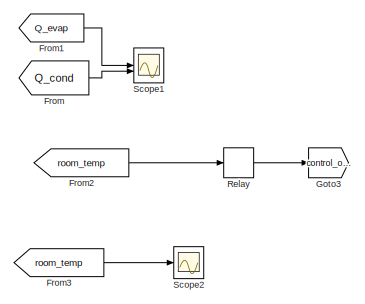
[diagram: root canvas - part 1/5, top right region]
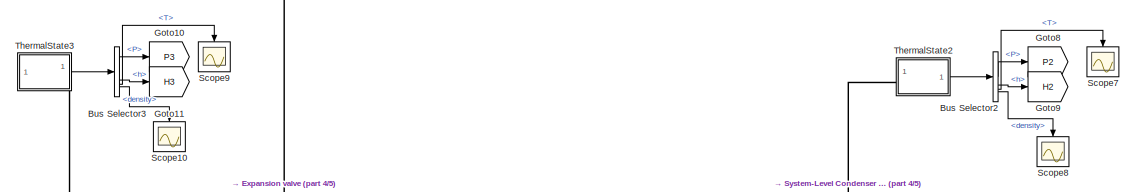
[diagram: root canvas - part 2/5, top left region]
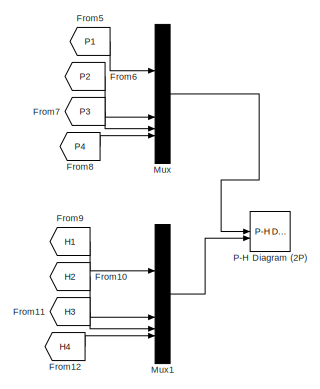
[diagram: root canvas - part 3/5, middle right region]
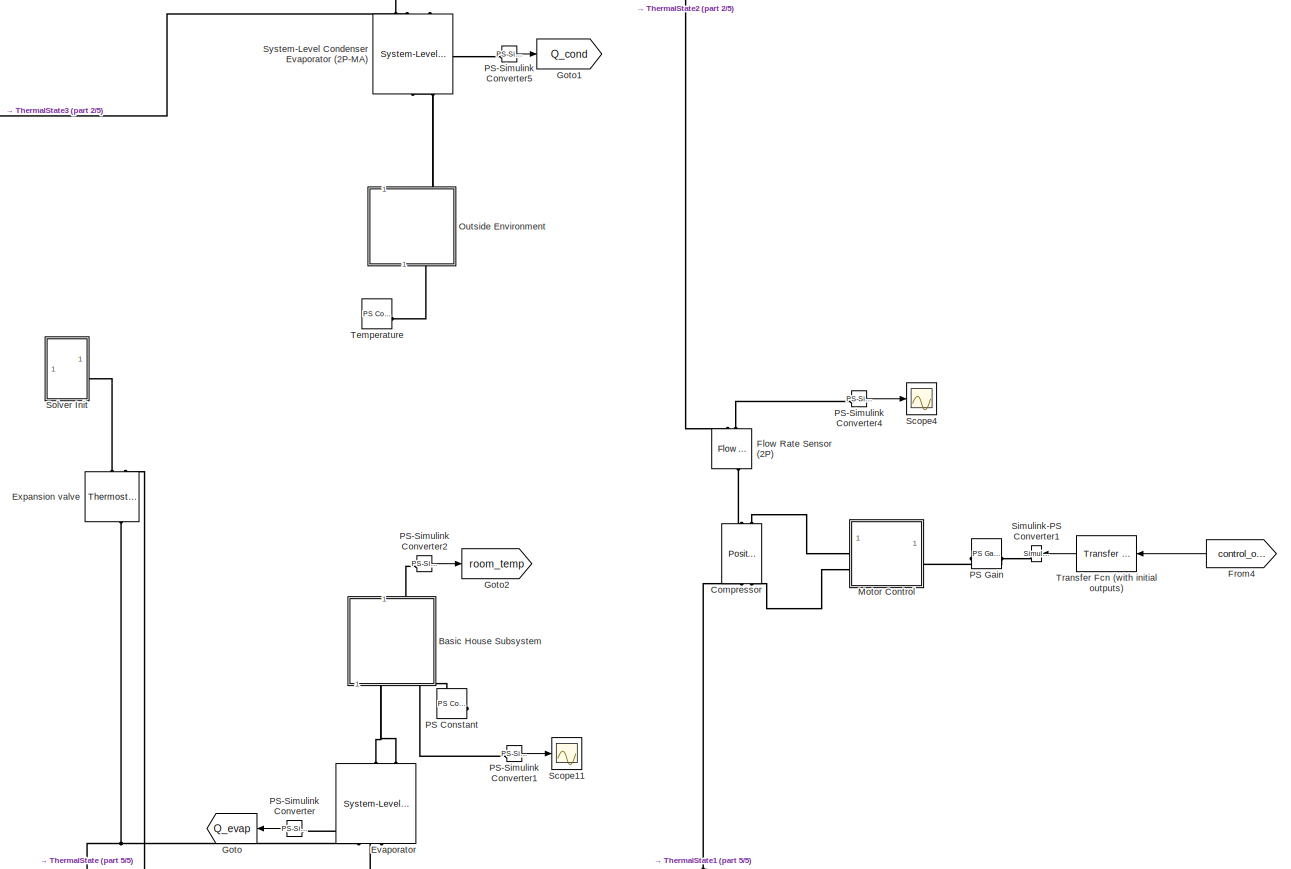
[diagram: root canvas - part 4/5, central region]
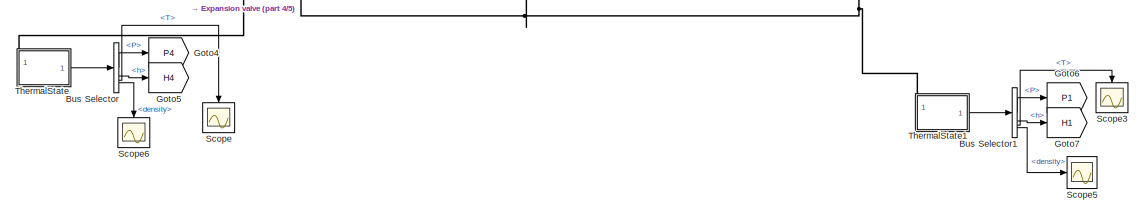
[diagram: root canvas - part 5/5, bottom left region]
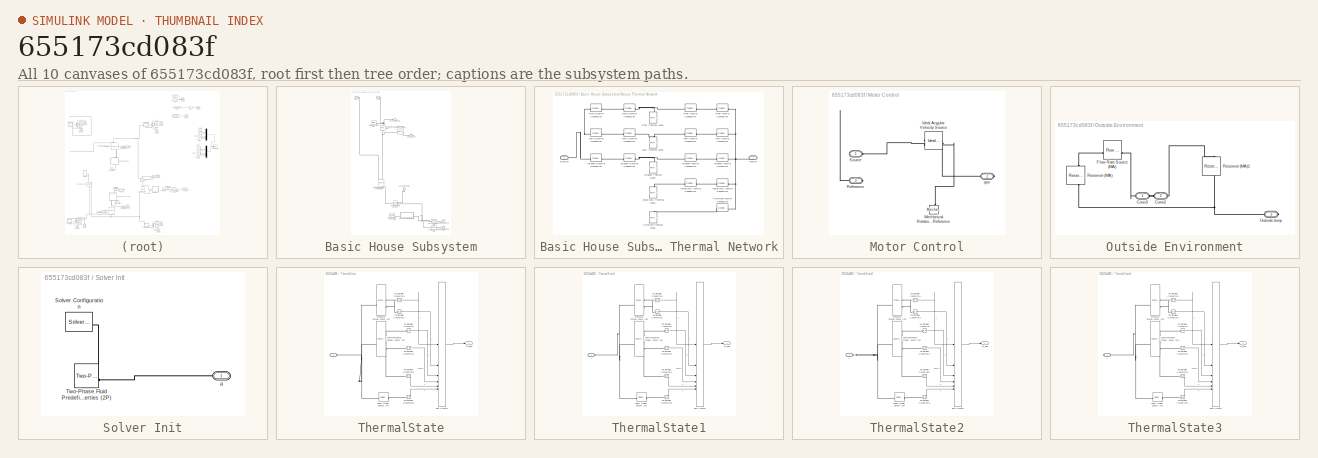
[diagram: thumbnail index - all 10 canvases of the model, root first then tree order]
MODEL slx_655173cd083f
KIND model
CONFIG AbsTol = auto
CONFIG EnableMultiTasking = off
CONFIG FixedStep = auto
CONFIG MaxStep = auto
CONFIG MinStep = auto
CONFIG RelTol = 1e-3
CONFIG SampleTimeConstraint = Unconstrained
CONFIG SolverName = VariableStepAuto
CONFIG StartTime = 0.0
CONFIG StopTime = 1000
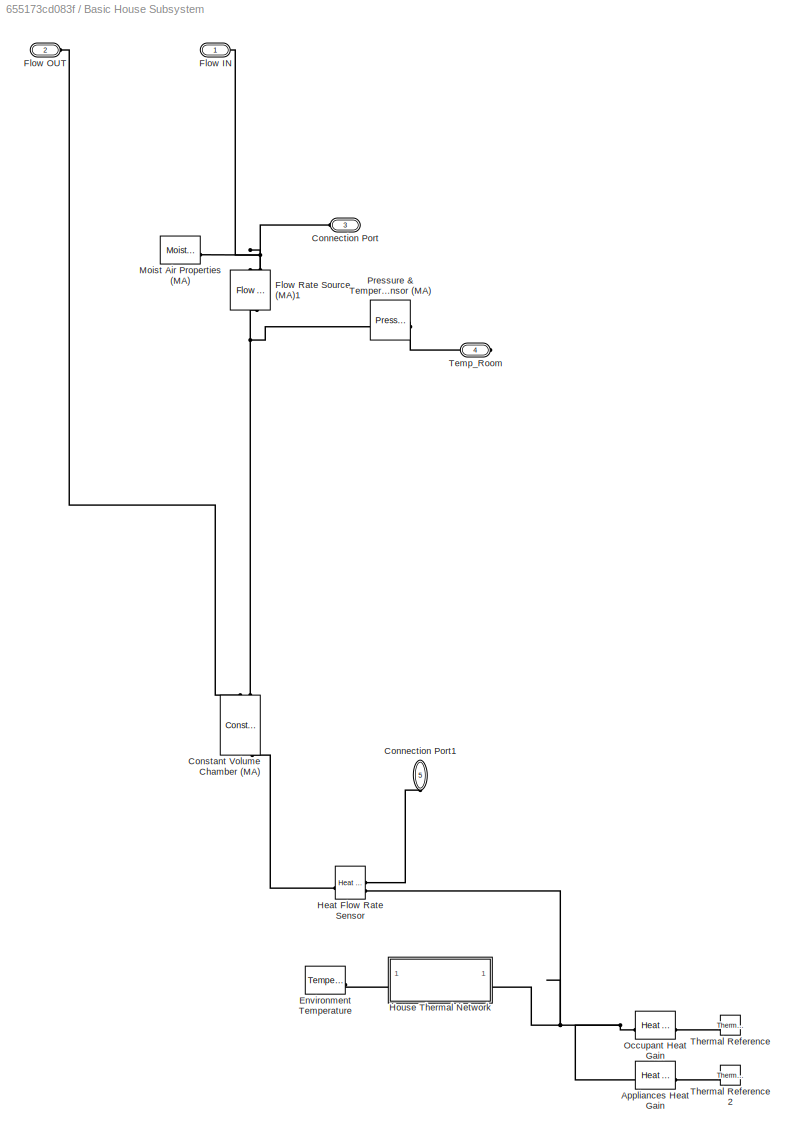
BLOCK [SubSystem] Basic House Subsystem
  NameLocation = right
BLOCK [Reference] Basic House Subsystem/Appliances Heat Gain  REF=fl_lib/Thermal/Thermal Sources/Heat Flow Rate
Source
  SourceBlock = fl_lib/Thermal/Thermal Sources/Heat Flow Rate\nSource
  SourceType = Heat Flow Rate\nSource
BLOCK [PMIOPort] Basic House Subsystem/Connection Port
  NameLocation = top
  Port = 3
  Side = Left
BLOCK [PMIOPort] Basic House Subsystem/Connection Port1
  NameLocation = left
  Port = 5
  Side = Left
BLOCK [Reference] Basic House Subsystem/Constant Volume Chamber (MA)  REF=fl_lib/Moist Air/Elements/Constant Volume
Chamber (MA)
  NameLocation = right
  SourceBlock = fl_lib/Moist Air/Elements/Constant Volume\nChamber (MA)
  SourceType = Constant Volume\nChamber (MA)
BLOCK [Reference] Basic House Subsystem/Environment Temperature  REF=fl_lib/Thermal/Thermal Sources/Temperature Source
  SourceBlock = fl_lib/Thermal/Thermal Sources/Temperature Source
  SourceType = Temperature Source
BLOCK [PMIOPort] Basic House Subsystem/Flow IN
  Side = Left
BLOCK [PMIOPort] Basic House Subsystem/Flow OUT
  Port = 2
  Side = Left
BLOCK [Reference] Basic House Subsystem/Flow Rate Source (MA)1  REF=fl_lib/Moist Air/Sources/Flow Rate Source
(MA)
  NameLocation = left
  SourceBlock = fl_lib/Moist Air/Sources/Flow Rate Source\n(MA)
  SourceType = Flow Rate Source\n(MA)
BLOCK [Reference] Basic House Subsystem/Heat Flow Rate Sensor  REF=fl_lib/Thermal/Thermal Sensors/Heat Flow Rate
Sensor
  SourceBlock = fl_lib/Thermal/Thermal Sensors/Heat Flow Rate\nSensor
  SourceType = Heat Flow Rate\nSensor
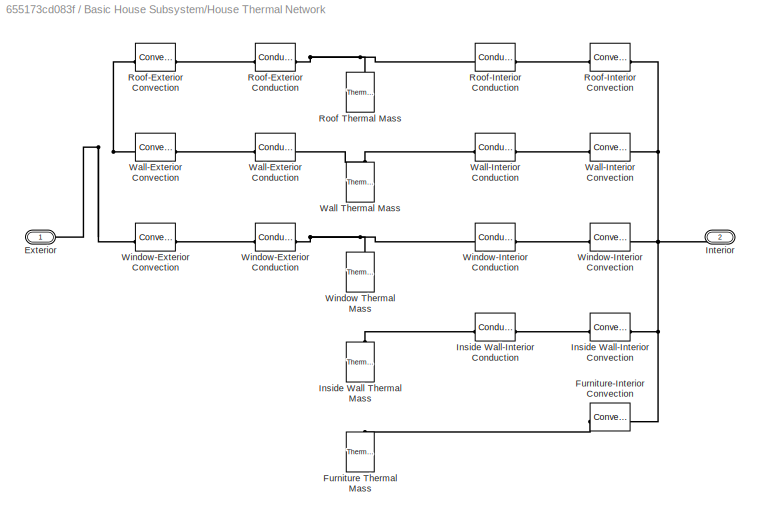
BLOCK [SubSystem] Basic House Subsystem/House Thermal Network
  Tag = PublishSubsystem
BLOCK [PMIOPort] Basic House Subsystem/House Thermal Network/Exterior
  Side = Left
BLOCK [Reference] Basic House Subsystem/House Thermal Network/Furniture Thermal Mass  REF=fl_lib/Thermal/Thermal Elements/Thermal Mass
  NameLocation = right
  SourceBlock = fl_lib/Thermal/Thermal Elements/Thermal Mass
  SourceType = Thermal Mass
BLOCK [Reference] Basic House Subsystem/House Thermal Network/Furniture-Interior Convection  REF=fl_lib/Thermal/Thermal Elements/Convective Heat
Transfer
  SourceBlock = fl_lib/Thermal/Thermal Elements/Convective Heat\nTransfer
  SourceType = Convective Heat\nTransfer
BLOCK [Reference] Basic House Subsystem/House Thermal Network/Inside Wall Thermal Mass  REF=fl_lib/Thermal/Thermal Elements/Thermal Mass
  NameLocation = right
  SourceBlock = fl_lib/Thermal/Thermal Elements/Thermal Mass
  SourceType = Thermal Mass
BLOCK [Reference] Basic House Subsystem/House Thermal Network/Inside Wall-Interior Conduction  REF=fl_lib/Thermal/Thermal Elements/Conductive Heat
Transfer
  SourceBlock = fl_lib/Thermal/Thermal Elements/Conductive Heat\nTransfer
  SourceType = Conductive Heat\nTransfer
BLOCK [Reference] Basic House Subsystem/House Thermal Network/Inside Wall-Interior Convection  REF=fl_lib/Thermal/Thermal Elements/Convective Heat
Transfer
  SourceBlock = fl_lib/Thermal/Thermal Elements/Convective Heat\nTransfer
  SourceType = Convective Heat\nTransfer
BLOCK [PMIOPort] Basic House Subsystem/House Thermal Network/Interior
  Port = 2
  Side = Right
BLOCK [Reference] Basic House Subsystem/House Thermal Network/Roof Thermal Mass  REF=fl_lib/Thermal/Thermal Elements/Thermal Mass
  NameLocation = right
  SourceBlock = fl_lib/Thermal/Thermal Elements/Thermal Mass
  SourceType = Thermal Mass
BLOCK [Reference] Basic House Subsystem/House Thermal Network/Roof-Exterior Conduction  REF=fl_lib/Thermal/Thermal Elements/Conductive Heat
Transfer
  SourceBlock = fl_lib/Thermal/Thermal Elements/Conductive Heat\nTransfer
  SourceType = Conductive Heat\nTransfer
BLOCK [Reference] Basic House Subsystem/House Thermal Network/Roof-Exterior Convection  REF=fl_lib/Thermal/Thermal Elements/Convective Heat
Transfer
  SourceBlock = fl_lib/Thermal/Thermal Elements/Convective Heat\nTransfer
  SourceType = Convective Heat\nTransfer
BLOCK [Reference] Basic House Subsystem/House Thermal Network/Roof-Interior Conduction  REF=fl_lib/Thermal/Thermal Elements/Conductive Heat
Transfer
  SourceBlock = fl_lib/Thermal/Thermal Elements/Conductive Heat\nTransfer
  SourceType = Conductive Heat\nTransfer
BLOCK [Reference] Basic House Subsystem/House Thermal Network/Roof-Interior Convection  REF=fl_lib/Thermal/Thermal Elements/Convective Heat
Transfer
  SourceBlock = fl_lib/Thermal/Thermal Elements/Convective Heat\nTransfer
  SourceType = Convective Heat\nTransfer
BLOCK [Reference] Basic House Subsystem/House Thermal Network/Wall Thermal Mass  REF=fl_lib/Thermal/Thermal Elements/Thermal Mass
  NameLocation = right
  SourceBlock = fl_lib/Thermal/Thermal Elements/Thermal Mass
  SourceType = Thermal Mass
BLOCK [Reference] Basic House Subsystem/House Thermal Network/Wall-Exterior Conduction  REF=fl_lib/Thermal/Thermal Elements/Conductive Heat
Transfer
  SourceBlock = fl_lib/Thermal/Thermal Elements/Conductive Heat\nTransfer
  SourceType = Conductive Heat\nTransfer
BLOCK [Reference] Basic House Subsystem/House Thermal Network/Wall-Exterior Convection  REF=fl_lib/Thermal/Thermal Elements/Convective Heat
Transfer
  SourceBlock = fl_lib/Thermal/Thermal Elements/Convective Heat\nTransfer
  SourceType = Convective Heat\nTransfer
BLOCK [Reference] Basic House Subsystem/House Thermal Network/Wall-Interior Conduction  REF=fl_lib/Thermal/Thermal Elements/Conductive Heat
Transfer
  SourceBlock = fl_lib/Thermal/Thermal Elements/Conductive Heat\nTransfer
  SourceType = Conductive Heat\nTransfer
BLOCK [Reference] Basic House Subsystem/House Thermal Network/Wall-Interior Convection  REF=fl_lib/Thermal/Thermal Elements/Convective Heat
Transfer
  SourceBlock = fl_lib/Thermal/Thermal Elements/Convective Heat\nTransfer
  SourceType = Convective Heat\nTransfer
BLOCK [Reference] Basic House Subsystem/House Thermal Network/Window Thermal Mass  REF=fl_lib/Thermal/Thermal Elements/Thermal Mass
  NameLocation = right
  SourceBlock = fl_lib/Thermal/Thermal Elements/Thermal Mass
  SourceType = Thermal Mass
BLOCK [Reference] Basic House Subsystem/House Thermal Network/Window-Exterior Conduction  REF=fl_lib/Thermal/Thermal Elements/Conductive Heat
Transfer
  SourceBlock = fl_lib/Thermal/Thermal Elements/Conductive Heat\nTransfer
  SourceType = Conductive Heat\nTransfer
BLOCK [Reference] Basic House Subsystem/House Thermal Network/Window-Exterior Convection  REF=fl_lib/Thermal/Thermal Elements/Convective Heat
Transfer
  SourceBlock = fl_lib/Thermal/Thermal Elements/Convective Heat\nTransfer
  SourceType = Convective Heat\nTransfer
BLOCK [Reference] Basic House Subsystem/House Thermal Network/Window-Interior Conduction  REF=fl_lib/Thermal/Thermal Elements/Conductive Heat
Transfer
  SourceBlock = fl_lib/Thermal/Thermal Elements/Conductive Heat\nTransfer
  SourceType = Conductive Heat\nTransfer
BLOCK [Reference] Basic House Subsystem/House Thermal Network/Window-Interior Convection  REF=fl_lib/Thermal/Thermal Elements/Convective Heat
Transfer
  SourceBlock = fl_lib/Thermal/Thermal Elements/Convective Heat\nTransfer
  SourceType = Convective Heat\nTransfer
BLOCK [Reference] Basic House Subsystem/Moist Air Properties (MA)  REF=fl_lib/Moist Air/Utilities/Moist Air Properties
(MA)
  SourceBlock = fl_lib/Moist Air/Utilities/Moist Air Properties\n(MA)
  SourceType = Moist Air Properties\n(MA)
BLOCK [Reference] Basic House Subsystem/Occupant Heat Gain  REF=fl_lib/Thermal/Thermal Sources/Heat Flow Rate
Source
  SourceBlock = fl_lib/Thermal/Thermal Sources/Heat Flow Rate\nSource
  SourceType = Heat Flow Rate\nSource
BLOCK [Reference] Basic House Subsystem/Pressure & Temperature Sensor (MA)  REF=fl_lib/Moist Air/Sensors/Pressure &
Temperature Sensor
(MA)
  SourceBlock = fl_lib/Moist Air/Sensors/Pressure &\nTemperature Sensor\n(MA)
  SourceType = Pressure &\nTemperature Sensor\n(MA)
BLOCK [PMIOPort] Basic House Subsystem/Temp_Room
  Port = 4
  Side = Right
BLOCK [Reference] Basic House Subsystem/Thermal Reference  REF=fl_lib/Thermal/Thermal Elements/Thermal Reference
  SourceBlock = fl_lib/Thermal/Thermal Elements/Thermal Reference
  SourceType = Thermal Reference
BLOCK [Reference] Basic House Subsystem/Thermal Reference2  REF=fl_lib/Thermal/Thermal Elements/Thermal Reference
  SourceBlock = fl_lib/Thermal/Thermal Elements/Thermal Reference
  SourceType = Thermal Reference
BLOCK [BusSelector] Bus Selector
  OutputSignals = P,h,T,density
BLOCK [BusSelector] Bus Selector1
  OutputSignals = P,h,T,density
BLOCK [BusSelector] Bus Selector2
  OutputSignals = P,h,T,density
BLOCK [BusSelector] Bus Selector3
  OutputSignals = P,h,T,density
BLOCK [Reference] Compressor  REF=SimscapeFluids_lib/Two-Phase Fluid/Fluid Machines/Positive-Displacement
Compressor (2P)
  NameLocation = right
  SourceBlock = SimscapeFluids_lib/Two-Phase Fluid/Fluid Machines/Positive-Displacement\nCompressor (2P)
  SourceType = Positive-Displacement\nCompressor (2P)
BLOCK [Reference] Evaporator  REF=SimscapeFluids_lib/Heat Exchangers/Two-Phase Fluid -
Moist Air/System-Level
Condenser Evaporator
(2P-MA)
  NameLocation = right
  SourceBlock = SimscapeFluids_lib/Heat Exchangers/Two-Phase Fluid -\nMoist Air/System-Level\nCondenser Evaporator\n(2P-MA)
  SourceType = System-Level\nCondenser Evaporator\n(2P-MA)
BLOCK [Reference] Expansion valve  REF=SimscapeFluids_lib/Two-Phase Fluid/Valves & Orifices/Flow Control Valves/Thermostatic
Expansion Valve (2P)
  NameLocation = left
  SourceBlock = SimscapeFluids_lib/Two-Phase Fluid/Valves & Orifices/Flow Control Valves/Thermostatic\nExpansion Valve (2P)
  SourceType = Thermostatic\nExpansion Valve (2P)
BLOCK [Reference] Flow Rate Sensor (2P)  REF=fl_lib/Two-Phase Fluid/Sensors/Flow Rate Sensor
(2P)
  NameLocation = right
  SourceBlock = fl_lib/Two-Phase Fluid/Sensors/Flow Rate Sensor\n(2P)
  SourceType = Flow Rate Sensor\n(2P)
BLOCK [From] From
  GotoTag = Q_cond
BLOCK [From] From1
  GotoTag = Q_evap
BLOCK [From] From10
  GotoTag = H2
BLOCK [From] From11
  GotoTag = H3
BLOCK [From] From12
  GotoTag = H4
BLOCK [From] From2
  GotoTag = room_temp
BLOCK [From] From3
  GotoTag = room_temp
BLOCK [From] From4
  GotoTag = control_on_off
  NameLocation = top
BLOCK [From] From5
  GotoTag = P1
BLOCK [From] From6
  GotoTag = P2
BLOCK [From] From7
  GotoTag = P3
BLOCK [From] From8
  GotoTag = P4
BLOCK [From] From9
  GotoTag = H1
BLOCK [Goto] Goto
  GotoTag = Q_evap
  NameLocation = top
BLOCK [Goto] Goto1
  GotoTag = Q_cond
BLOCK [Goto] Goto10
  GotoTag = P3
BLOCK [Goto] Goto11
  GotoTag = H3
BLOCK [Goto] Goto2
  GotoTag = room_temp
BLOCK [Goto] Goto3
  GotoTag = control_on_off
BLOCK [Goto] Goto4
  GotoTag = P4
BLOCK [Goto] Goto5
  GotoTag = H4
BLOCK [Goto] Goto6
  GotoTag = P1
BLOCK [Goto] Goto7
  GotoTag = H1
BLOCK [Goto] Goto8
  GotoTag = P2
BLOCK [Goto] Goto9
  GotoTag = H2
BLOCK [SubSystem] Motor Control
BLOCK [Reference] Motor Control/Ideal Angular Velocity Source  REF=fl_lib/Mechanical/Mechanical Sources/Ideal Angular
Velocity Source
  NameLocation = top
  SourceBlock = fl_lib/Mechanical/Mechanical Sources/Ideal Angular\nVelocity Source
  SourceType = Ideal Angular\nVelocity Source
BLOCK [Reference] Motor Control/Mechanical Rotational Reference  REF=fl_lib/Mechanical/Rotational Elements/Mechanical
Rotational Reference
  NameLocation = right
  SourceBlock = fl_lib/Mechanical/Rotational Elements/Mechanical\nRotational Reference
  SourceType = Mechanical\nRotational Reference
BLOCK [PMIOPort] Motor Control/Reference
  Port = 3
  Side = Left
BLOCK [PMIOPort] Motor Control/Source
  Side = Left
BLOCK [PMIOPort] Motor Control/rpm
  Port = 2
  Side = Right
BLOCK [Mux] Mux
  DisplayOption = bar
BLOCK [Mux] Mux1
  DisplayOption = bar
BLOCK [SubSystem] Outside Environment
  NameLocation = left
BLOCK [PMIOPort] Outside Environment/Conn2
  Port = 2
  Side = Left
BLOCK [PMIOPort] Outside Environment/Conn3
  Side = Left
BLOCK [Reference] Outside Environment/Flow Rate Source (MA)  REF=fl_lib/Moist Air/Sources/Flow Rate Source
(MA)
  SourceBlock = fl_lib/Moist Air/Sources/Flow Rate Source\n(MA)
  SourceType = Flow Rate Source\n(MA)
BLOCK [PMIOPort] Outside Environment/Outside temp
  Port = 3
  Side = Right
BLOCK [Reference] Outside Environment/Reservoir (MA)  REF=fl_lib/Moist Air/Elements/Reservoir (MA)
  NameLocation = right
  SourceBlock = fl_lib/Moist Air/Elements/Reservoir (MA)
  SourceType = Reservoir (MA)
BLOCK [Reference] Outside Environment/Reservoir (MA)1  REF=fl_lib/Moist Air/Elements/Reservoir (MA)
  NameLocation = right
  SourceBlock = fl_lib/Moist Air/Elements/Reservoir (MA)
  SourceType = Reservoir (MA)
BLOCK [Reference] P-H Diagram (2P)  REF=SimscapeFluids_lib/Two-Phase Fluid/Utilities/P-H Diagram (2P)
  SourceBlock = SimscapeFluids_lib/Two-Phase Fluid/Utilities/P-H Diagram (2P)
  SourceType = P-H Diagram (2P)
  UserDataPersistent = on
BLOCK [Reference] PS Constant  REF=fl_lib/Physical Signals/Sources/PS Constant
  NameLocation = top
  SourceBlock = fl_lib/Physical Signals/Sources/PS Constant
  SourceType = PS Constant
BLOCK [Reference] PS Gain  REF=fl_lib/Physical Signals/Functions/PS Gain
  NameLocation = top
  SourceBlock = fl_lib/Physical Signals/Functions/PS Gain
  SourceType = PS Gain
BLOCK [Reference] PS-Simulink Converter  REF=nesl_utility/PS-Simulink
Converter
  NameLocation = top
  SourceBlock = nesl_utility/PS-Simulink\nConverter
  SourceType = PS-Simulink\nConverter
BLOCK [Reference] PS-Simulink Converter1  REF=nesl_utility/PS-Simulink
Converter
  SourceBlock = nesl_utility/PS-Simulink\nConverter
  SourceType = PS-Simulink\nConverter
BLOCK [Reference] PS-Simulink Converter2  REF=nesl_utility/PS-Simulink
Converter
  SourceBlock = nesl_utility/PS-Simulink\nConverter
  SourceType = PS-Simulink\nConverter
BLOCK [Reference] PS-Simulink Converter4  REF=nesl_utility/PS-Simulink
Converter
  SourceBlock = nesl_utility/PS-Simulink\nConverter
  SourceType = PS-Simulink\nConverter
BLOCK [Reference] PS-Simulink Converter5  REF=nesl_utility/PS-Simulink
Converter
  SourceBlock = nesl_utility/PS-Simulink\nConverter
  SourceType = PS-Simulink\nConverter
BLOCK [Relay] Relay
  OffSwitchValue = 296
  OnSwitchValue = 298
  OutDataTypeStr = double
BLOCK [Scope] Scope
  Floating = off
  NameLocation = left
  NumInputPorts = 1
  ScopeSpecificationString = Simulink.scopes.TimeScopeBlockCfg('CurrentConfiguration', extmgr.ConfigurationSet(extmgr.Configuration('Core','General UI',true),extmgr.Configuration('Core','Source UI',true),extmgr.Configuration('Sources','WiredSimulink',true,'DataLoggingVariableName','ScopeData1'),extmgr.Configuration('Visuals','Time Domain',true,'SerializedDisplays',{struct('MinYLimReal','160.7225','MaxYLimReal','360.7225','YLa...<+1457ch>
BLOCK [Scope] Scope1
  Floating = off
  NumInputPorts = 2
  ScopeSpecificationString = Simulink.scopes.TimeScopeBlockCfg('CurrentConfiguration', extmgr.ConfigurationSet(extmgr.Configuration('Core','General UI',true),extmgr.Configuration('Core','Source UI',true),extmgr.Configuration('Sources','WiredSimulink',true,'DataLoggingVariableName','ScopeData2'),extmgr.Configuration('Visuals','Time Domain',true,'SerializedDisplays',{struct('MinYLimReal','-11497.54853','MaxYLimReal','103477.936...<+1593ch>
BLOCK [Scope] Scope10
  Floating = off
  NameLocation = left
  NumInputPorts = 1
  ScopeSpecificationString = Simulink.scopes.TimeScopeBlockCfg('CurrentConfiguration', extmgr.ConfigurationSet(extmgr.Configuration('Core','General UI',true),extmgr.Configuration('Core','Source UI',true),extmgr.Configuration('Sources','WiredSimulink',true,'DataLoggingVariableName','ScopeData9'),extmgr.Configuration('Visuals','Time Domain',true,'SerializedDisplays',{struct('MinYLimReal','71.48505','MaxYLimReal','2071.48505','Y...<+1471ch>
BLOCK [Scope] Scope11
  Floating = off
  NumInputPorts = 1
  ScopeSpecificationString = Simulink.scopes.TimeScopeBlockCfg('CurrentConfiguration', extmgr.ConfigurationSet(extmgr.Configuration('Core','General UI',true),extmgr.Configuration('Core','Source UI',true),extmgr.Configuration('Sources','WiredSimulink',true,'DataLoggingVariableName','ScopeData1'),extmgr.Configuration('Visuals','Time Domain',true,'SerializedDisplays',{struct('MinYLimReal','-29691.64608','MaxYLimReal','70572.9221...<+1500ch>
BLOCK [Scope] Scope2
  Floating = off
  NumInputPorts = 1
  ScopeSpecificationString = Simulink.scopes.TimeScopeBlockCfg('CurrentConfiguration', extmgr.ConfigurationSet(extmgr.Configuration('Core','General UI',true),extmgr.Configuration('Core','Source UI',true),extmgr.Configuration('Sources','WiredSimulink',true,'DataLoggingVariableName','ScopeData3'),extmgr.Configuration('Visuals','Time Domain',true,'SerializedDisplays',{struct('MinYLimReal','282.8703','MaxYLimReal','308.21854','YL...<+1510ch>
BLOCK [Scope] Scope3
  Floating = off
  NameLocation = left
  NumInputPorts = 1
  ScopeSpecificationString = Simulink.scopes.TimeScopeBlockCfg('CurrentConfiguration', extmgr.ConfigurationSet(extmgr.Configuration('Core','General UI',true),extmgr.Configuration('Core','Source UI',true),extmgr.Configuration('Sources','WiredSimulink',true,'DataLoggingVariableName','ScopeData5'),extmgr.Configuration('Visuals','Time Domain',true,'SerializedDisplays',{struct('MinYLimReal','264.76561','MaxYLimReal','283.71388','Y...<+1465ch>
BLOCK [Scope] Scope4
  Floating = off
  NumInputPorts = 1
  ScopeSpecificationString = Simulink.scopes.TimeScopeBlockCfg('CurrentConfiguration', extmgr.ConfigurationSet(extmgr.Configuration('Core','General UI',true),extmgr.Configuration('Core','Source UI',true),extmgr.Configuration('Sources','WiredSimulink',true,'DataLoggingVariableName','ScopeData4'),extmgr.Configuration('Visuals','Time Domain',true,'SerializedDisplays',{struct('MinYLimReal','0.04608','MaxYLimReal','0.37782','YLabe...<+1468ch>
BLOCK [Scope] Scope5
  Floating = off
  NumInputPorts = 1
  ScopeSpecificationString = Simulink.scopes.TimeScopeBlockCfg('CurrentConfiguration', extmgr.ConfigurationSet(extmgr.Configuration('Core','General UI',true),extmgr.Configuration('Core','Source UI',true),extmgr.Configuration('Sources','WiredSimulink',true,'DataLoggingVariableName','ScopeData6'),extmgr.Configuration('Visuals','Time Domain',true,'SerializedDisplays',{struct('MinYLimReal','0.00603','MaxYLimReal','0.01064','YLabe...<+1455ch>
BLOCK [Scope] Scope6
  Floating = off
  NameLocation = left
  NumInputPorts = 1
  ScopeSpecificationString = Simulink.scopes.TimeScopeBlockCfg('CurrentConfiguration', extmgr.ConfigurationSet(extmgr.Configuration('Core','General UI',true),extmgr.Configuration('Core','Source UI',true),extmgr.Configuration('Sources','WiredSimulink',true,'DataLoggingVariableName','ScopeData4'),extmgr.Configuration('Visuals','Time Domain',true,'SerializedDisplays',{struct('MinYLimReal','52.81119','MaxYLimReal','72.81119','YLa...<+1463ch>
BLOCK [Scope] Scope7
  Floating = off
  NameLocation = left
  NumInputPorts = 1
  ScopeSpecificationString = Simulink.scopes.TimeScopeBlockCfg('CurrentConfiguration', extmgr.ConfigurationSet(extmgr.Configuration('Core','General UI',true),extmgr.Configuration('Core','Source UI',true),extmgr.Configuration('Sources','WiredSimulink',true,'DataLoggingVariableName','ScopeData7'),extmgr.Configuration('Visuals','Time Domain',true,'SerializedDisplays',{struct('MinYLimReal','239.74677','MaxYLimReal','439.74677','Y...<+1465ch>
BLOCK [Scope] Scope8
  Floating = off
  NameLocation = left
  NumInputPorts = 1
  ScopeSpecificationString = Simulink.scopes.TimeScopeBlockCfg('CurrentConfiguration', extmgr.ConfigurationSet(extmgr.Configuration('Core','General UI',true),extmgr.Configuration('Core','Source UI',true),extmgr.Configuration('Sources','WiredSimulink',true,'DataLoggingVariableName','ScopeData8'),extmgr.Configuration('Visuals','Time Domain',true,'SerializedDisplays',{struct('MinYLimReal','42.53283','MaxYLimReal','74.14091','YLa...<+1463ch>
BLOCK [Scope] Scope9
  Floating = off
  NameLocation = left
  NumInputPorts = 1
  ScopeSpecificationString = Simulink.scopes.TimeScopeBlockCfg('CurrentConfiguration', extmgr.ConfigurationSet(extmgr.Configuration('Core','General UI',true),extmgr.Configuration('Core','Source UI',true),extmgr.Configuration('Sources','WiredSimulink',true,'DataLoggingVariableName','ScopeData10'),extmgr.Configuration('Visuals','Time Domain',true,'SerializedDisplays',{struct('MinYLimReal','227.74889','MaxYLimReal','427.74889','...<+1466ch>
BLOCK [Reference] Simulink-PS Converter1  REF=nesl_utility/Simulink-PS
Converter
  NameLocation = top
  SourceBlock = nesl_utility/Simulink-PS\nConverter
  SourceType = Simulink-PS\nConverter
BLOCK [SubSystem] Solver Init
BLOCK [Reference] Solver Init/Solver Configuration  REF=nesl_utility/Solver
Configuration
  SourceBlock = nesl_utility/Solver\nConfiguration
  SourceType = Solver\nConfiguration
BLOCK [Reference] Solver Init/Two-Phase Fluid Predefined Properties (2P)  REF=SimscapeFluids_lib/Two-Phase Fluid/Utilities/Two-Phase Fluid
Predefined
Properties (2P)
  SourceBlock = SimscapeFluids_lib/Two-Phase Fluid/Utilities/Two-Phase Fluid\nPredefined\nProperties (2P)
  SourceType = Two-Phase Fluid\nPredefined\nProperties (2P)
BLOCK [PMIOPort] Solver Init/a
  Side = Right
BLOCK [Reference] System-Level Condenser Evaporator (2P-MA)  REF=SimscapeFluids_lib/Heat Exchangers/Two-Phase Fluid -
Moist Air/System-Level
Condenser Evaporator
(2P-MA)
  NameLocation = right
  SourceBlock = SimscapeFluids_lib/Heat Exchangers/Two-Phase Fluid -\nMoist Air/System-Level\nCondenser Evaporator\n(2P-MA)
  SourceType = System-Level\nCondenser Evaporator\n(2P-MA)
BLOCK [Reference] Temperature  REF=fl_lib/Physical Signals/Sources/PS Constant
  NameLocation = top
  SourceBlock = fl_lib/Physical Signals/Sources/PS Constant
  SourceType = PS Constant
BLOCK [SubSystem] ThermalState
  PortSchema = {"entries":[{"content":{"sides":[{"content":{},"type":"ConnectorPlacement.EquallySpacedRectSide","uuid":"eca35595-507d-4a0c-9e13-8880a4260549"},{"content":{"connectorIds":["Out1"],"side":"RIGHT"},"type":"ConnectorPlacement.EquallySpacedRectSide","uuid":"f8e4f95c-2de1-421d-a3f7-c763bfe2ccf4"},{"content":{"connectorIds":["LConn1"],"side":"TOP"},"type":"ConnectorPlacement.EquallySpacedRectSide","uuid...<+226ch>
BLOCK [PMIOPort] ThermalState/A
  Side = Left
BLOCK [BusCreator] ThermalState/Bus Creator
  DisplayOption = bar
  InheritFromInputs = on
  Inputs = 6
BLOCK [Outport] ThermalState/M_Bus
BLOCK [Reference] ThermalState/PS-Simulink Converter  REF=nesl_utility/PS-Simulink
Converter
  SourceBlock = nesl_utility/PS-Simulink\nConverter
  SourceType = PS-Simulink\nConverter
BLOCK [Reference] ThermalState/PS-Simulink Converter1  REF=nesl_utility/PS-Simulink
Converter
  SourceBlock = nesl_utility/PS-Simulink\nConverter
  SourceType = PS-Simulink\nConverter
BLOCK [Reference] ThermalState/PS-Simulink Converter2  REF=nesl_utility/PS-Simulink
Converter
  SourceBlock = nesl_utility/PS-Simulink\nConverter
  SourceType = PS-Simulink\nConverter
BLOCK [Reference] ThermalState/PS-Simulink Converter3  REF=nesl_utility/PS-Simulink
Converter
  SourceBlock = nesl_utility/PS-Simulink\nConverter
  SourceType = PS-Simulink\nConverter
BLOCK [Reference] ThermalState/PS-Simulink Converter5  REF=nesl_utility/PS-Simulink
Converter
  SourceBlock = nesl_utility/PS-Simulink\nConverter
  SourceType = PS-Simulink\nConverter
BLOCK [Reference] ThermalState/PS-Simulink Converter6  REF=nesl_utility/PS-Simulink
Converter
  SourceBlock = nesl_utility/PS-Simulink\nConverter
  SourceType = PS-Simulink\nConverter
BLOCK [Reference] ThermalState/Pressure, Temperature & Internal Energy Sensor (2P)  REF=fl_lib/Two-Phase Fluid/Sensors/Pressure,
Temperature &
Internal Energy
Sensor (2P)
  SourceBlock = fl_lib/Two-Phase Fluid/Sensors/Pressure,\nTemperature &\nInternal Energy\nSensor (2P)
  SourceType = Pressure,\nTemperature &\nInternal Energy\nSensor (2P)
BLOCK [Reference] ThermalState/Thermodynamic Properties Sensor (2P)  REF=fl_lib/Two-Phase Fluid/Sensors/Thermodynamic
Properties Sensor
(2P)
  SourceBlock = fl_lib/Two-Phase Fluid/Sensors/Thermodynamic\nProperties Sensor\n(2P)
  SourceType = Thermodynamic\nProperties Sensor\n(2P)
BLOCK [Reference] ThermalState/Vapor Quality Sensor (2P)  REF=fl_lib/Two-Phase Fluid/Sensors/Vapor Quality Sensor
(2P)
  SourceBlock = fl_lib/Two-Phase Fluid/Sensors/Vapor Quality Sensor\n(2P)
  SourceType = Vapor Quality Sensor\n(2P)
BLOCK [SubSystem] ThermalState1
  PortSchema = {"entries":[{"content":{"sides":[{"content":{},"type":"ConnectorPlacement.EquallySpacedRectSide","uuid":"eca35595-507d-4a0c-9e13-8880a4260549"},{"content":{"connectorIds":["Out1"],"side":"RIGHT"},"type":"ConnectorPlacement.EquallySpacedRectSide","uuid":"f8e4f95c-2de1-421d-a3f7-c763bfe2ccf4"},{"content":{"connectorIds":["LConn1"],"side":"TOP"},"type":"ConnectorPlacement.EquallySpacedRectSide","uuid...<+226ch>
BLOCK [PMIOPort] ThermalState1/A
  Side = Left
BLOCK [BusCreator] ThermalState1/Bus Creator
  DisplayOption = bar
  InheritFromInputs = on
  Inputs = 6
BLOCK [Outport] ThermalState1/M_Bus
BLOCK [Reference] ThermalState1/PS-Simulink Converter  REF=nesl_utility/PS-Simulink
Converter
  SourceBlock = nesl_utility/PS-Simulink\nConverter
  SourceType = PS-Simulink\nConverter
BLOCK [Reference] ThermalState1/PS-Simulink Converter1  REF=nesl_utility/PS-Simulink
Converter
  SourceBlock = nesl_utility/PS-Simulink\nConverter
  SourceType = PS-Simulink\nConverter
BLOCK [Reference] ThermalState1/PS-Simulink Converter2  REF=nesl_utility/PS-Simulink
Converter
  SourceBlock = nesl_utility/PS-Simulink\nConverter
  SourceType = PS-Simulink\nConverter
BLOCK [Reference] ThermalState1/PS-Simulink Converter3  REF=nesl_utility/PS-Simulink
Converter
  SourceBlock = nesl_utility/PS-Simulink\nConverter
  SourceType = PS-Simulink\nConverter
BLOCK [Reference] ThermalState1/PS-Simulink Converter5  REF=nesl_utility/PS-Simulink
Converter
  SourceBlock = nesl_utility/PS-Simulink\nConverter
  SourceType = PS-Simulink\nConverter
BLOCK [Reference] ThermalState1/PS-Simulink Converter6  REF=nesl_utility/PS-Simulink
Converter
  SourceBlock = nesl_utility/PS-Simulink\nConverter
  SourceType = PS-Simulink\nConverter
BLOCK [Reference] ThermalState1/Pressure, Temperature & Internal Energy Sensor (2P)  REF=fl_lib/Two-Phase Fluid/Sensors/Pressure,
Temperature &
Internal Energy
Sensor (2P)
  SourceBlock = fl_lib/Two-Phase Fluid/Sensors/Pressure,\nTemperature &\nInternal Energy\nSensor (2P)
  SourceType = Pressure,\nTemperature &\nInternal Energy\nSensor (2P)
BLOCK [Reference] ThermalState1/Thermodynamic Properties Sensor (2P)  REF=fl_lib/Two-Phase Fluid/Sensors/Thermodynamic
Properties Sensor
(2P)
  SourceBlock = fl_lib/Two-Phase Fluid/Sensors/Thermodynamic\nProperties Sensor\n(2P)
  SourceType = Thermodynamic\nProperties Sensor\n(2P)
BLOCK [Reference] ThermalState1/Vapor Quality Sensor (2P)  REF=fl_lib/Two-Phase Fluid/Sensors/Vapor Quality Sensor
(2P)
  SourceBlock = fl_lib/Two-Phase Fluid/Sensors/Vapor Quality Sensor\n(2P)
  SourceType = Vapor Quality Sensor\n(2P)
BLOCK [SubSystem] ThermalState2
BLOCK [PMIOPort] ThermalState2/A
  Side = Left
BLOCK [BusCreator] ThermalState2/Bus Creator
  DisplayOption = bar
  InheritFromInputs = on
  Inputs = 6
BLOCK [Outport] ThermalState2/M_Bus
BLOCK [Reference] ThermalState2/PS-Simulink Converter  REF=nesl_utility/PS-Simulink
Converter
  SourceBlock = nesl_utility/PS-Simulink\nConverter
  SourceType = PS-Simulink\nConverter
BLOCK [Reference] ThermalState2/PS-Simulink Converter1  REF=nesl_utility/PS-Simulink
Converter
  SourceBlock = nesl_utility/PS-Simulink\nConverter
  SourceType = PS-Simulink\nConverter
BLOCK [Reference] ThermalState2/PS-Simulink Converter2  REF=nesl_utility/PS-Simulink
Converter
  SourceBlock = nesl_utility/PS-Simulink\nConverter
  SourceType = PS-Simulink\nConverter
BLOCK [Reference] ThermalState2/PS-Simulink Converter3  REF=nesl_utility/PS-Simulink
Converter
  SourceBlock = nesl_utility/PS-Simulink\nConverter
  SourceType = PS-Simulink\nConverter
BLOCK [Reference] ThermalState2/PS-Simulink Converter5  REF=nesl_utility/PS-Simulink
Converter
  SourceBlock = nesl_utility/PS-Simulink\nConverter
  SourceType = PS-Simulink\nConverter
BLOCK [Reference] ThermalState2/PS-Simulink Converter6  REF=nesl_utility/PS-Simulink
Converter
  SourceBlock = nesl_utility/PS-Simulink\nConverter
  SourceType = PS-Simulink\nConverter
BLOCK [Reference] ThermalState2/Pressure, Temperature & Internal Energy Sensor (2P)  REF=fl_lib/Two-Phase Fluid/Sensors/Pressure,
Temperature &
Internal Energy
Sensor (2P)
  SourceBlock = fl_lib/Two-Phase Fluid/Sensors/Pressure,\nTemperature &\nInternal Energy\nSensor (2P)
  SourceType = Pressure,\nTemperature &\nInternal Energy\nSensor (2P)
BLOCK [Reference] ThermalState2/Thermodynamic Properties Sensor (2P)  REF=fl_lib/Two-Phase Fluid/Sensors/Thermodynamic
Properties Sensor
(2P)
  SourceBlock = fl_lib/Two-Phase Fluid/Sensors/Thermodynamic\nProperties Sensor\n(2P)
  SourceType = Thermodynamic\nProperties Sensor\n(2P)
BLOCK [Reference] ThermalState2/Vapor Quality Sensor (2P)  REF=fl_lib/Two-Phase Fluid/Sensors/Vapor Quality Sensor
(2P)
  SourceBlock = fl_lib/Two-Phase Fluid/Sensors/Vapor Quality Sensor\n(2P)
  SourceType = Vapor Quality Sensor\n(2P)
BLOCK [SubSystem] ThermalState3
  PortSchema = {"entries":[{"content":{"sides":[{"content":{},"type":"ConnectorPlacement.EquallySpacedRectSide","uuid":"eca35595-507d-4a0c-9e13-8880a4260549"},{"content":{"connectorIds":["Out1"],"side":"RIGHT"},"type":"ConnectorPlacement.EquallySpacedRectSide","uuid":"f8e4f95c-2de1-421d-a3f7-c763bfe2ccf4"},{"content":{"side":"TOP"},"type":"ConnectorPlacement.EquallySpacedRectSide","uuid":"0dd48027-b3d2-4668-b66e...<+352ch>
BLOCK [PMIOPort] ThermalState3/A
  Side = Right
BLOCK [BusCreator] ThermalState3/Bus Creator
  DisplayOption = bar
  InheritFromInputs = on
  Inputs = 6
BLOCK [Outport] ThermalState3/M_Bus
BLOCK [Reference] ThermalState3/PS-Simulink Converter  REF=nesl_utility/PS-Simulink
Converter
  SourceBlock = nesl_utility/PS-Simulink\nConverter
  SourceType = PS-Simulink\nConverter
BLOCK [Reference] ThermalState3/PS-Simulink Converter1  REF=nesl_utility/PS-Simulink
Converter
  SourceBlock = nesl_utility/PS-Simulink\nConverter
  SourceType = PS-Simulink\nConverter
BLOCK [Reference] ThermalState3/PS-Simulink Converter2  REF=nesl_utility/PS-Simulink
Converter
  SourceBlock = nesl_utility/PS-Simulink\nConverter
  SourceType = PS-Simulink\nConverter
BLOCK [Reference] ThermalState3/PS-Simulink Converter3  REF=nesl_utility/PS-Simulink
Converter
  SourceBlock = nesl_utility/PS-Simulink\nConverter
  SourceType = PS-Simulink\nConverter
BLOCK [Reference] ThermalState3/PS-Simulink Converter5  REF=nesl_utility/PS-Simulink
Converter
  SourceBlock = nesl_utility/PS-Simulink\nConverter
  SourceType = PS-Simulink\nConverter
BLOCK [Reference] ThermalState3/PS-Simulink Converter6  REF=nesl_utility/PS-Simulink
Converter
  SourceBlock = nesl_utility/PS-Simulink\nConverter
  SourceType = PS-Simulink\nConverter
BLOCK [Reference] ThermalState3/Pressure, Temperature & Internal Energy Sensor (2P)  REF=fl_lib/Two-Phase Fluid/Sensors/Pressure,
Temperature &
Internal Energy
Sensor (2P)
  SourceBlock = fl_lib/Two-Phase Fluid/Sensors/Pressure,\nTemperature &\nInternal Energy\nSensor (2P)
  SourceType = Pressure,\nTemperature &\nInternal Energy\nSensor (2P)
BLOCK [Reference] ThermalState3/Thermodynamic Properties Sensor (2P)  REF=fl_lib/Two-Phase Fluid/Sensors/Thermodynamic
Properties Sensor
(2P)
  SourceBlock = fl_lib/Two-Phase Fluid/Sensors/Thermodynamic\nProperties Sensor\n(2P)
  SourceType = Thermodynamic\nProperties Sensor\n(2P)
BLOCK [Reference] ThermalState3/Vapor Quality Sensor (2P)  REF=fl_lib/Two-Phase Fluid/Sensors/Vapor Quality Sensor
(2P)
  SourceBlock = fl_lib/Two-Phase Fluid/Sensors/Vapor Quality Sensor\n(2P)
  SourceType = Vapor Quality Sensor\n(2P)
BLOCK [Reference] Transfer Fcn (with initial outputs)  REF=simulink_extras/Additional
Linear/Transfer Fcn
(with initial outputs)
  NameLocation = top
  SourceBlock = simulink_extras/Additional\nLinear/Transfer Fcn\n(with initial outputs)
  SourceType = Transfer Function with Initial Outputs
LINE Bus Selector1:1 -> Goto6:1
LINE Bus Selector1:2 -> Goto7:1
LINE Bus Selector1:3 -> Scope3:1
LINE Bus Selector1:4 -> Scope5:1
LINE Bus Selector2:1 -> Goto8:1
LINE Bus Selector2:2 -> Goto9:1
LINE Bus Selector2:3 -> Scope7:1
LINE Bus Selector2:4 -> Scope8:1
LINE Bus Selector3:1 -> Goto10:1
LINE Bus Selector3:2 -> Goto11:1
LINE Bus Selector3:3 -> Scope9:1
LINE Bus Selector3:4 -> Scope10:1
LINE Bus Selector:1 -> Goto4:1
LINE Bus Selector:2 -> Goto5:1
LINE Bus Selector:3 -> Scope:1
LINE Bus Selector:4 -> Scope6:1
LINE From10:1 -> Mux1:2
LINE From11:1 -> Mux1:3
LINE From12:1 -> Mux1:4
LINE From1:1 -> Scope1:1
LINE From2:1 -> Relay:1
LINE From3:1 -> Scope2:1
LINE From4:1 -> Transfer Fcn (with initial outputs):1
LINE From5:1 -> Mux:1
LINE From6:1 -> Mux:2
LINE From7:1 -> Mux:3
LINE From8:1 -> Mux:4
LINE From9:1 -> Mux1:1
LINE From:1 -> Scope1:2
LINE Mux1:1 -> P-H Diagram (2P):2
LINE Mux:1 -> P-H Diagram (2P):1
LINE PS-Simulink Converter1:1 -> Scope11:1
LINE PS-Simulink Converter2:1 -> Goto2:1
LINE PS-Simulink Converter4:1 -> Scope4:1
LINE PS-Simulink Converter5:1 -> Goto1:1
LINE PS-Simulink Converter:1 -> Goto:1
LINE Relay:1 -> Goto3:1
LINE ThermalState/Bus Creator:1 -> ThermalState/M_Bus:1
LINE ThermalState/PS-Simulink Converter1:1 -> ThermalState/Bus Creator:1
LINE ThermalState/PS-Simulink Converter2:1 -> ThermalState/Bus Creator:2
LINE ThermalState/PS-Simulink Converter3:1 -> ThermalState/Bus Creator:4
LINE ThermalState/PS-Simulink Converter5:1 -> ThermalState/Bus Creator:5
LINE ThermalState/PS-Simulink Converter6:1 -> ThermalState/Bus Creator:6
LINE ThermalState/PS-Simulink Converter:1 -> ThermalState/Bus Creator:3
LINE ThermalState1/Bus Creator:1 -> ThermalState1/M_Bus:1
LINE ThermalState1/PS-Simulink Converter1:1 -> ThermalState1/Bus Creator:1
LINE ThermalState1/PS-Simulink Converter2:1 -> ThermalState1/Bus Creator:2
LINE ThermalState1/PS-Simulink Converter3:1 -> ThermalState1/Bus Creator:4
LINE ThermalState1/PS-Simulink Converter5:1 -> ThermalState1/Bus Creator:5
LINE ThermalState1/PS-Simulink Converter6:1 -> ThermalState1/Bus Creator:6
LINE ThermalState1/PS-Simulink Converter:1 -> ThermalState1/Bus Creator:3
LINE ThermalState1:1 -> Bus Selector1:1
LINE ThermalState2/Bus Creator:1 -> ThermalState2/M_Bus:1
LINE ThermalState2/PS-Simulink Converter1:1 -> ThermalState2/Bus Creator:1
LINE ThermalState2/PS-Simulink Converter2:1 -> ThermalState2/Bus Creator:2
LINE ThermalState2/PS-Simulink Converter3:1 -> ThermalState2/Bus Creator:4
LINE ThermalState2/PS-Simulink Converter5:1 -> ThermalState2/Bus Creator:5
LINE ThermalState2/PS-Simulink Converter6:1 -> ThermalState2/Bus Creator:6
LINE ThermalState2/PS-Simulink Converter:1 -> ThermalState2/Bus Creator:3
LINE ThermalState2:1 -> Bus Selector2:1
LINE ThermalState3/Bus Creator:1 -> ThermalState3/M_Bus:1
LINE ThermalState3/PS-Simulink Converter1:1 -> ThermalState3/Bus Creator:1
LINE ThermalState3/PS-Simulink Converter2:1 -> ThermalState3/Bus Creator:2
LINE ThermalState3/PS-Simulink Converter3:1 -> ThermalState3/Bus Creator:4
LINE ThermalState3/PS-Simulink Converter5:1 -> ThermalState3/Bus Creator:5
LINE ThermalState3/PS-Simulink Converter6:1 -> ThermalState3/Bus Creator:6
LINE ThermalState3/PS-Simulink Converter:1 -> ThermalState3/Bus Creator:3
LINE ThermalState3:1 -> Bus Selector3:1
LINE ThermalState:1 -> Bus Selector:1
LINE Transfer Fcn (with initial outputs):1 -> Simulink-PS Converter1:1
PNET net1: Basic House Subsystem/Appliances Heat Gain:LConn1 -- Basic House Subsystem/Heat Flow Rate Sensor:RConn2 -- Basic House Subsystem/House Thermal Network:RConn1 -- Basic House Subsystem/Occupant Heat Gain:LConn1
PLINE Basic House Subsystem/Appliances Heat Gain:RConn1 -- Basic House Subsystem/Thermal Reference2:LConn1
PLINE Basic House Subsystem/Connection Port1:RConn1 -- Basic House Subsystem/Heat Flow Rate Sensor:RConn1
PLINE Basic House Subsystem/Connection Port:RConn1 -- Basic House Subsystem/Flow Rate Source (MA)1:LConn2
PLINE Basic House Subsystem/Constant Volume Chamber (MA):LConn1 -- Basic House Subsystem/Flow OUT:RConn1
PNET net2: Basic House Subsystem/Constant Volume Chamber (MA):LConn2 -- Basic House Subsystem/Flow Rate Source (MA)1:RConn1 -- Basic House Subsystem/Pressure & Temperature Sensor (MA):LConn1
PLINE Basic House Subsystem/Constant Volume Chamber (MA):RConn3 -- Basic House Subsystem/Heat Flow Rate Sensor:LConn1
PLINE Basic House Subsystem/Environment Temperature:LConn1 -- Basic House Subsystem/House Thermal Network:LConn1
PNET net3: Basic House Subsystem/Flow IN:RConn1 -- Basic House Subsystem/Flow Rate Source (MA)1:LConn1 -- Basic House Subsystem/Moist Air Properties (MA):RConn1
PNET net4: Basic House Subsystem/House Thermal Network/Exterior:RConn1 -- Basic House Subsystem/House Thermal Network/Roof-Exterior Convection:LConn1 -- Basic House Subsystem/House Thermal Network/Wall-Exterior Convection:LConn1 -- Basic House Subsystem/House Thermal Network/Window-Exterior Convection:LConn1
PLINE Basic House Subsystem/House Thermal Network/Furniture Thermal Mass:LConn1 -- Basic House Subsystem/House Thermal Network/Furniture-Interior Convection:LConn1
PNET net5: Basic House Subsystem/House Thermal Network/Furniture-Interior Convection:RConn1 -- Basic House Subsystem/House Thermal Network/Inside Wall-Interior Convection:RConn1 -- Basic House Subsystem/House Thermal Network/Interior:RConn1 -- Basic House Subsystem/House Thermal Network/Roof-Interior Convection:RConn1 -- Basic House Subsystem/House Thermal Network/Wall-Interior Convection:RConn1 -- Basic House Subsystem/House Thermal Network/Window-Interior Convection:RConn1
PLINE Basic House Subsystem/House Thermal Network/Inside Wall Thermal Mass:LConn1 -- Basic House Subsystem/House Thermal Network/Inside Wall-Interior Conduction:LConn1
PLINE Basic House Subsystem/House Thermal Network/Inside Wall-Interior Conduction:RConn1 -- Basic House Subsystem/House Thermal Network/Inside Wall-Interior Convection:LConn1
PNET net6: Basic House Subsystem/House Thermal Network/Roof Thermal Mass:LConn1 -- Basic House Subsystem/House Thermal Network/Roof-Exterior Conduction:RConn1 -- Basic House Subsystem/House Thermal Network/Roof-Interior Conduction:LConn1
PLINE Basic House Subsystem/House Thermal Network/Roof-Exterior Conduction:LConn1 -- Basic House Subsystem/House Thermal Network/Roof-Exterior Convection:RConn1
PLINE Basic House Subsystem/House Thermal Network/Roof-Interior Conduction:RConn1 -- Basic House Subsystem/House Thermal Network/Roof-Interior Convection:LConn1
PNET net7: Basic House Subsystem/House Thermal Network/Wall Thermal Mass:LConn1 -- Basic House Subsystem/House Thermal Network/Wall-Exterior Conduction:RConn1 -- Basic House Subsystem/House Thermal Network/Wall-Interior Conduction:LConn1
PLINE Basic House Subsystem/House Thermal Network/Wall-Exterior Conduction:LConn1 -- Basic House Subsystem/House Thermal Network/Wall-Exterior Convection:RConn1
PLINE Basic House Subsystem/House Thermal Network/Wall-Interior Conduction:RConn1 -- Basic House Subsystem/House Thermal Network/Wall-Interior Convection:LConn1
PNET net8: Basic House Subsystem/House Thermal Network/Window Thermal Mass:LConn1 -- Basic House Subsystem/House Thermal Network/Window-Exterior Conduction:RConn1 -- Basic House Subsystem/House Thermal Network/Window-Interior Conduction:LConn1
PLINE Basic House Subsystem/House Thermal Network/Window-Exterior Conduction:LConn1 -- Basic House Subsystem/House Thermal Network/Window-Exterior Convection:RConn1
PLINE Basic House Subsystem/House Thermal Network/Window-Interior Conduction:RConn1 -- Basic House Subsystem/House Thermal Network/Window-Interior Convection:LConn1
PLINE Basic House Subsystem/Occupant Heat Gain:RConn1 -- Basic House Subsystem/Thermal Reference:LConn1
PLINE Basic House Subsystem/Pressure & Temperature Sensor (MA):RConn1 -- Basic House Subsystem/Temp_Room:RConn1
PLINE Basic House Subsystem:LConn1 -- Evaporator:RConn1
PLINE Basic House Subsystem:LConn2 -- Evaporator:RConn2
PLINE Basic House Subsystem:LConn3 -- PS Constant:RConn1
PLINE Basic House Subsystem:LConn4 -- PS-Simulink Converter1:LConn1
PLINE Basic House Subsystem:RConn1 -- PS-Simulink Converter2:LConn1
PNET net9: Compressor:LConn1 -- Evaporator:LConn2 -- Expansion valve:LConn2 -- ThermalState1:LConn1
PLINE Compressor:LConn2 -- Motor Control:LConn2
PLINE Compressor:RConn1 -- Flow Rate Sensor (2P):LConn1
PLINE Compressor:RConn2 -- Motor Control:LConn1
PNET net10: Evaporator:LConn1 -- Expansion valve:RConn1 -- ThermalState:LConn1
PLINE Evaporator:LConn3 -- PS-Simulink Converter:LConn1
PNET net11: Expansion valve:LConn1 -- Solver Init:RConn1 -- System-Level Condenser Evaporator (2P-MA):LConn2 -- ThermalState3:RConn1
PNET net12: Flow Rate Sensor (2P):RConn1 -- System-Level Condenser Evaporator (2P-MA):LConn1 -- ThermalState2:LConn1
PLINE Flow Rate Sensor (2P):RConn2 -- PS-Simulink Converter4:LConn1
PLINE Motor Control/Ideal Angular Velocity Source:LConn1 -- Motor Control/Source:RConn1
PLINE Motor Control/Ideal Angular Velocity Source:RConn1 -- Motor Control/rpm:RConn1
PNET net13: Motor Control/Ideal Angular Velocity Source:RConn2 -- Motor Control/Mechanical Rotational Reference:LConn1 -- Motor Control/Reference:RConn1
PLINE Motor Control:RConn1 -- PS Gain:RConn1
PLINE Outside Environment/Conn2:RConn1 -- Outside Environment/Flow Rate Source (MA):RConn1
PLINE Outside Environment/Conn3:RConn1 -- Outside Environment/Reservoir (MA)1:LConn1
PLINE Outside Environment/Flow Rate Source (MA):LConn1 -- Outside Environment/Reservoir (MA):LConn1
PNET net14: Outside Environment/Outside temp:RConn1 -- Outside Environment/Reservoir (MA)1:RConn1 -- Outside Environment/Reservoir (MA):RConn1
PLINE Outside Environment:LConn1 -- System-Level Condenser Evaporator (2P-MA):RConn2
PLINE Outside Environment:LConn2 -- System-Level Condenser Evaporator (2P-MA):RConn1
PLINE Outside Environment:RConn1 -- Temperature:RConn1
PLINE PS Gain:LConn1 -- Simulink-PS Converter1:RConn1
PLINE PS-Simulink Converter5:LConn1 -- System-Level Condenser Evaporator (2P-MA):LConn4
PNET net15: Solver Init/Solver Configuration:RConn1 -- Solver Init/Two-Phase Fluid Predefined Properties (2P):RConn1 -- Solver Init/a:RConn1
PNET net16: ThermalState/A:RConn1 -- ThermalState/Pressure, Temperature & Internal Energy Sensor (2P):LConn1 -- ThermalState/Thermodynamic Properties Sensor (2P):LConn1 -- ThermalState/Vapor Quality Sensor (2P):LConn1
PLINE ThermalState/PS-Simulink Converter1:LConn1 -- ThermalState/Pressure, Temperature & Internal Energy Sensor (2P):RConn1
PLINE ThermalState/PS-Simulink Converter2:LConn1 -- ThermalState/Pressure, Temperature & Internal Energy Sensor (2P):RConn2
PLINE ThermalState/PS-Simulink Converter3:LConn1 -- ThermalState/Thermodynamic Properties Sensor (2P):RConn2
PLINE ThermalState/PS-Simulink Converter5:LConn1 -- ThermalState/Thermodynamic Properties Sensor (2P):RConn3
PLINE ThermalState/PS-Simulink Converter6:LConn1 -- ThermalState/Vapor Quality Sensor (2P):RConn1
PLINE ThermalState/PS-Simulink Converter:LConn1 -- ThermalState/Thermodynamic Properties Sensor (2P):RConn1
PNET net17: ThermalState1/A:RConn1 -- ThermalState1/Pressure, Temperature & Internal Energy Sensor (2P):LConn1 -- ThermalState1/Thermodynamic Properties Sensor (2P):LConn1 -- ThermalState1/Vapor Quality Sensor (2P):LConn1
PLINE ThermalState1/PS-Simulink Converter1:LConn1 -- ThermalState1/Pressure, Temperature & Internal Energy Sensor (2P):RConn1
PLINE ThermalState1/PS-Simulink Converter2:LConn1 -- ThermalState1/Pressure, Temperature & Internal Energy Sensor (2P):RConn2
PLINE ThermalState1/PS-Simulink Converter3:LConn1 -- ThermalState1/Thermodynamic Properties Sensor (2P):RConn2
PLINE ThermalState1/PS-Simulink Converter5:LConn1 -- ThermalState1/Thermodynamic Properties Sensor (2P):RConn3
PLINE ThermalState1/PS-Simulink Converter6:LConn1 -- ThermalState1/Vapor Quality Sensor (2P):RConn1
PLINE ThermalState1/PS-Simulink Converter:LConn1 -- ThermalState1/Thermodynamic Properties Sensor (2P):RConn1
PNET net18: ThermalState2/A:RConn1 -- ThermalState2/Pressure, Temperature & Internal Energy Sensor (2P):LConn1 -- ThermalState2/Thermodynamic Properties Sensor (2P):LConn1 -- ThermalState2/Vapor Quality Sensor (2P):LConn1
PLINE ThermalState2/PS-Simulink Converter1:LConn1 -- ThermalState2/Pressure, Temperature & Internal Energy Sensor (2P):RConn1
PLINE ThermalState2/PS-Simulink Converter2:LConn1 -- ThermalState2/Pressure, Temperature & Internal Energy Sensor (2P):RConn2
PLINE ThermalState2/PS-Simulink Converter3:LConn1 -- ThermalState2/Thermodynamic Properties Sensor (2P):RConn2
PLINE ThermalState2/PS-Simulink Converter5:LConn1 -- ThermalState2/Thermodynamic Properties Sensor (2P):RConn3
PLINE ThermalState2/PS-Simulink Converter6:LConn1 -- ThermalState2/Vapor Quality Sensor (2P):RConn1
PLINE ThermalState2/PS-Simulink Converter:LConn1 -- ThermalState2/Thermodynamic Properties Sensor (2P):RConn1
PNET net19: ThermalState3/A:RConn1 -- ThermalState3/Pressure, Temperature & Internal Energy Sensor (2P):LConn1 -- ThermalState3/Thermodynamic Properties Sensor (2P):LConn1 -- ThermalState3/Vapor Quality Sensor (2P):LConn1
PLINE ThermalState3/PS-Simulink Converter1:LConn1 -- ThermalState3/Pressure, Temperature & Internal Energy Sensor (2P):RConn1
PLINE ThermalState3/PS-Simulink Converter2:LConn1 -- ThermalState3/Pressure, Temperature & Internal Energy Sensor (2P):RConn2
PLINE ThermalState3/PS-Simulink Converter3:LConn1 -- ThermalState3/Thermodynamic Properties Sensor (2P):RConn2
PLINE ThermalState3/PS-Simulink Converter5:LConn1 -- ThermalState3/Thermodynamic Properties Sensor (2P):RConn3
PLINE ThermalState3/PS-Simulink Converter6:LConn1 -- ThermalState3/Vapor Quality Sensor (2P):RConn1
PLINE ThermalState3/PS-Simulink Converter:LConn1 -- ThermalState3/Thermodynamic Properties Sensor (2P):RConn1
note: PNET lines group multi-terminal physical nets as a canonical sorted terminal list (undirected conserving connections); 2-terminal nets keep the pairwise PLINE form
